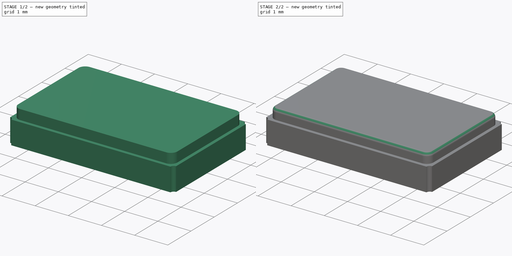
[diagram: build sequence overview — one tinted view per stage of 2, left to right]
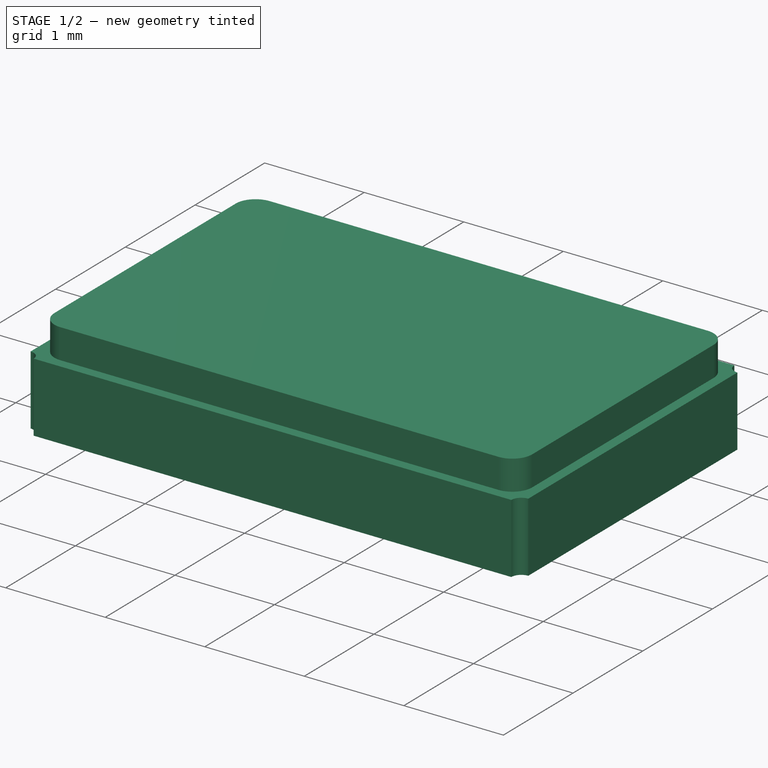
[diagram: stage 1 of 2 — iso view after this stage's code; geometry added in this stage tinted green]
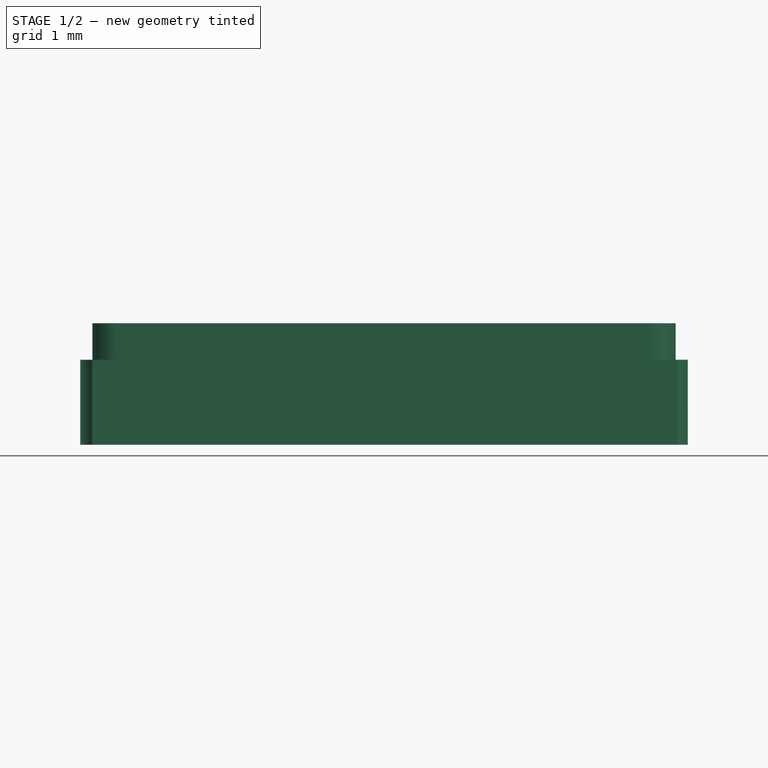
[diagram: stage 1 of 2 — front view after this stage's code; geometry added in this stage tinted green]
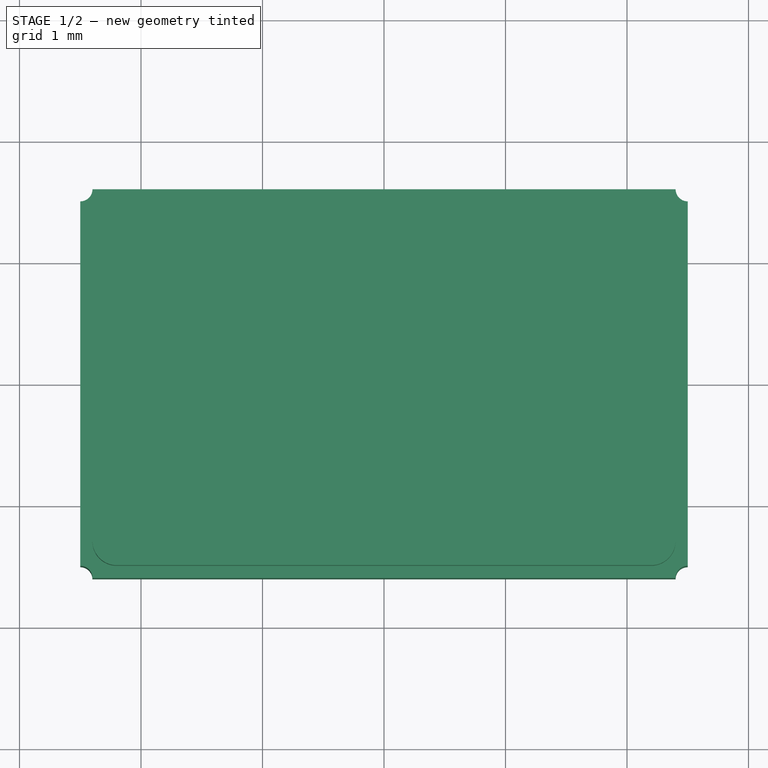
[diagram: stage 1 of 2 — top view after this stage's code; geometry added in this stage tinted green]
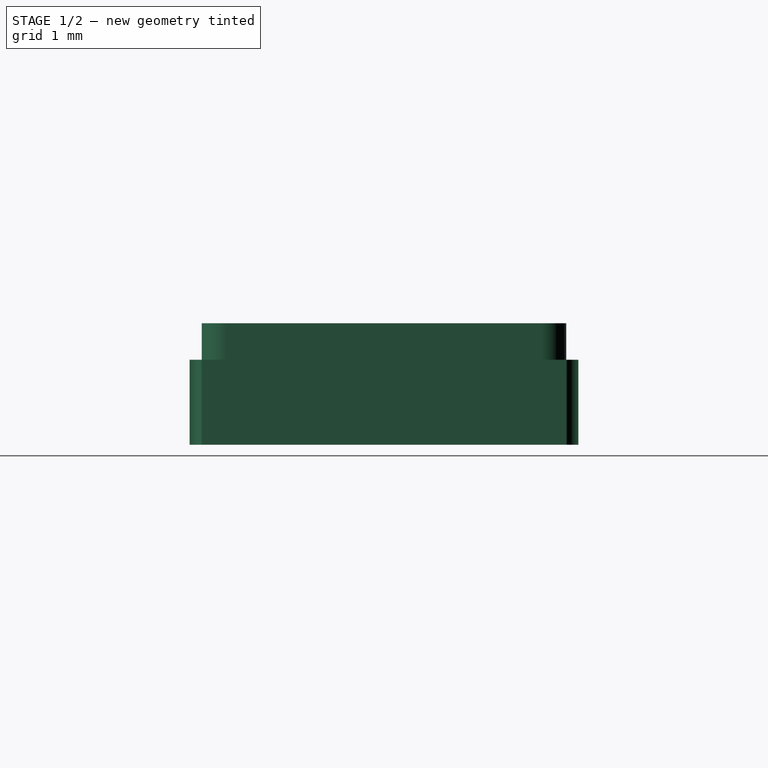
[diagram: stage 1 of 2 — right view after this stage's code; geometry added in this stage tinted green]
FCSTD DOCUMENT  (FreeCAD 0.21R33771 (Git))
Label: EURO_QUARZ_5.0x3.2x1.0
License: All rights reserved
LicenseURL: https://en.wikipedia.org/wiki/All_rights_reserved
objects: Sketcher::SketchObject×2, PartDesign::Pad×2, PartDesign::Fillet×1, PartDesign::Body×1
note: 9 computed .brp shape members not serialized (recipe doc carries the construction recipe); baked Part::Feature solids carry a one-line shape summary decoded from their .brp

FEATURE [Sketcher::SketchObject] Sketch001
  FullyConstrained = false
  MapMode = 5
  Support = -> [XY_Plane]
  sketch-geometry (9):
    g0: LineSegment StartX=-2.5 StartY=1.5 StartZ=0 EndX=-2.5 EndY=-1.5 EndZ=0
    g1: LineSegment StartX=-2.4 StartY=-1.6 StartZ=0 EndX=2.4 EndY=-1.6 EndZ=0
    g2: LineSegment StartX=2.5 StartY=-1.5 StartZ=0 EndX=2.5 EndY=1.5 EndZ=0
    g3: LineSegment StartX=2.4 StartY=1.6 StartZ=0 EndX=-2.3993 EndY=1.6 EndZ=0
    g4: GeomPoint X=0 Y=0 Z=0
    g5: ArcOfCircle CenterX=-2.4993 CenterY=1.6 CenterZ=0 NormalX=0 NormalY=0 NormalZ=1 AngleXU=0 Radius=0.1 StartAngle=4.70535 EndAngle=6.28319
    g6: ArcOfCircle CenterX=2.5 CenterY=1.6 CenterZ=0 NormalX=0 NormalY=0 NormalZ=1 AngleXU=0 Radius=0.1 StartAngle=3.14159 EndAngle=4.71239
    g7: ArcOfCircle CenterX=2.5 CenterY=-1.6 CenterZ=0 NormalX=0 NormalY=0 NormalZ=1 AngleXU=0 Radius=0.1 StartAngle=1.5708 EndAngle=3.14159
    g8: ArcOfCircle CenterX=-2.5 CenterY=-1.6 CenterZ=0 NormalX=0 NormalY=0 NormalZ=1 AngleXU=0 Radius=0.1 StartAngle=-1.8e-15 EndAngle=1.5708
  constraints (23):
    c: Horizontal(g1)
    c: Horizontal(g3)
    c: Vertical(g0)
    c: Vertical(g2)
    c: Coincident(g4,g-1)
    c: DistanceY(g7,g6) = 3.2
    c: PointOnObject(g5,g3)
    c: Radius(g5) = 0.1
    c: Radius(g6) = 0.1
    c: Radius(g7) = 0.1
    c: Radius(g8) = 0.1
    c: Coincident(g3,g5)
    c: Coincident(g0,g5)
    c: Coincident(g3,g6)
    c: Coincident(g2,g6)
    c: Coincident(g0,g8)
    c: Coincident(g1,g8)
    c: Coincident(g1,g7)
    c: Coincident(g2,g7)
    c: DistanceX(g4,g2) = 2.5
    c: DistanceX(g0,g4) = 2.5
    c: DistanceY(g4,g3) = 1.6
    c: DistanceY(g1,g4) = 1.6
FEATURE [PartDesign::Pad] Pad
  Direction = (0,0,1)
  Length = 0.7
  Length2 = 10
  Profile = -> Sketch001
  ReferenceAxis = -> Sketch001 [N_Axis]
  Type = 0
FEATURE [Sketcher::SketchObject] Sketch
  FullyConstrained = true
  MapMode = 5
  Placement = pos=(0,0,0.7) rot=(0,0,1;0rad)
  Support = -> [Pad]
  sketch-geometry (9):
    g0: LineSegment StartX=-2.4 StartY=1.3 StartZ=0 EndX=-2.4 EndY=-1.3 EndZ=0
    g1: LineSegment StartX=-2.2 StartY=-1.5 StartZ=0 EndX=2.2 EndY=-1.5 EndZ=0
    g2: LineSegment StartX=2.4 StartY=-1.3 StartZ=0 EndX=2.4 EndY=1.3 EndZ=0
    g3: LineSegment StartX=2.2 StartY=1.5 StartZ=0 EndX=-2.2 EndY=1.5 EndZ=0
    g4: GeomPoint X=0 Y=0 Z=0
    g5: ArcOfCircle CenterX=-2.2 CenterY=1.3 CenterZ=0 NormalX=0 NormalY=0 NormalZ=1 AngleXU=0 Radius=0.2 StartAngle=1.5708 EndAngle=3.14159
    g6: ArcOfCircle CenterX=2.2 CenterY=1.3 CenterZ=0 NormalX=0 NormalY=0 NormalZ=1 AngleXU=0 Radius=0.2 StartAngle=4e-16 EndAngle=1.5708
    g7: ArcOfCircle CenterX=2.2 CenterY=-1.3 CenterZ=0 NormalX=0 NormalY=0 NormalZ=1 AngleXU=0 Radius=0.2 StartAngle=4.71239 EndAngle=6.28319
    g8: ArcOfCircle CenterX=-2.2 CenterY=-1.3 CenterZ=0 NormalX=0 NormalY=0 NormalZ=1 AngleXU=0 Radius=0.2 StartAngle=3.14159 EndAngle=4.71239
  constraints (21):
    c: Horizontal(g1)
    c: Horizontal(g3)
    c: Vertical(g0)
    c: Vertical(g2)
    c: Coincident(g4,g-1)
    c: Tangent(g0,g5) = -1.5708
    c: Tangent(g3,g5) = -1.5708
    c: Tangent(g2,g6) = -1.5708
    c: Tangent(g3,g6) = -1.5708
    c: Tangent(g1,g7) = -1.5708
    c: Tangent(g2,g7) = -1.5708
    c: Tangent(g0,g8) = -1.5708
    c: Tangent(g1,g8) = -1.5708
    c: Radius(g5) = 0.2
    c: Radius(g6) = 0.2
    c: Radius(g7) = 0.2
    c: Radius(g8) = 0.2
    c: DistanceX(g4,g2) = 2.4
    c: DistanceX(g0,g4) = 2.4
    c: DistanceY(g4,g3) = 1.5
    c: DistanceY(g1,g4) = 1.5
FEATURE [PartDesign::Pad] Pad001
  BaseFeature = -> Pad
  Direction = (0,0,1)
  Length = 0.3
  Length2 = 10
  Profile = -> Sketch
  ReferenceAxis = -> Sketch [N_Axis]
  Type = 0
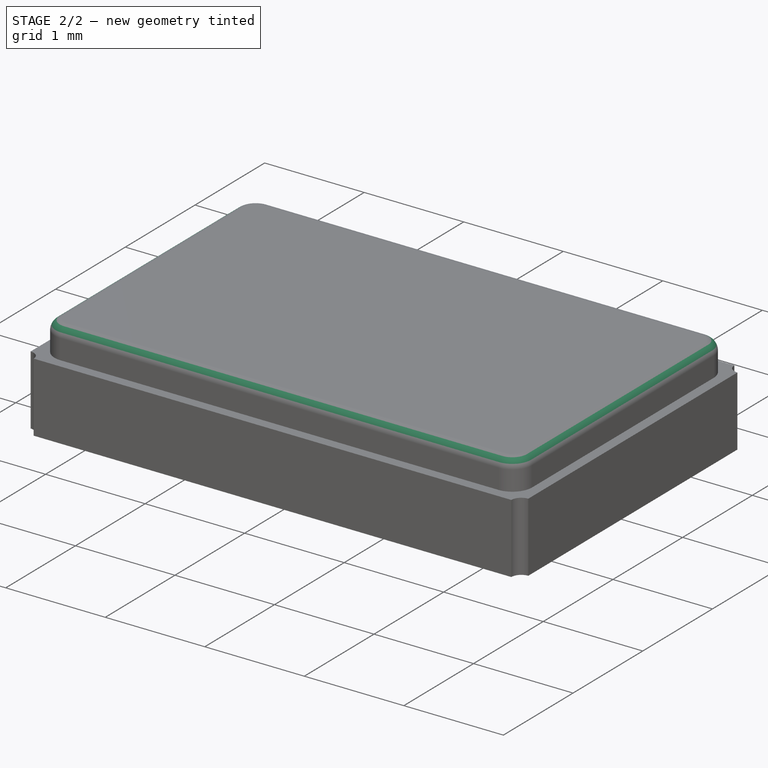
[diagram: stage 2 of 2 — iso view after this stage's code; geometry added in this stage tinted green]
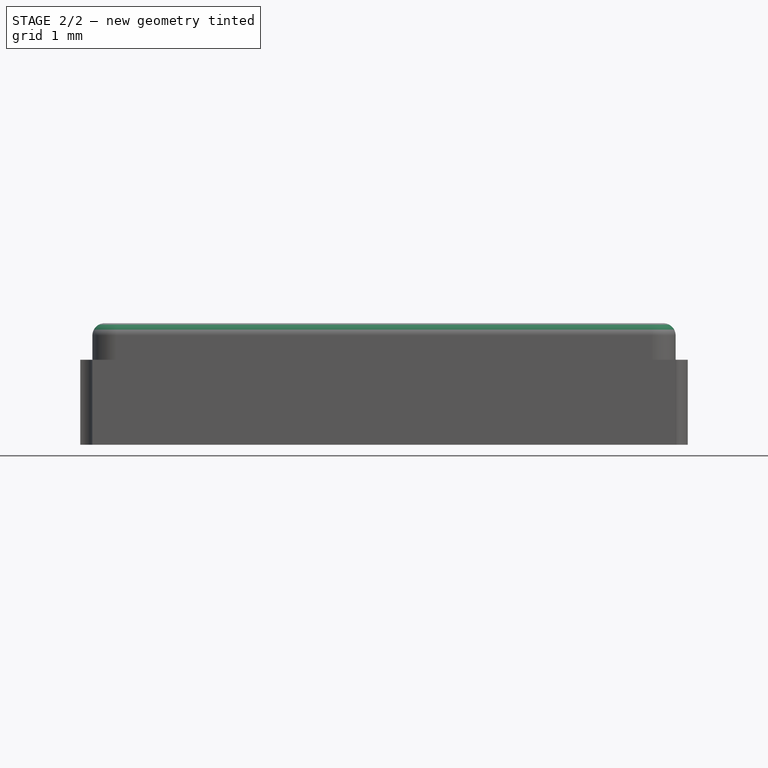
[diagram: stage 2 of 2 — front view after this stage's code; geometry added in this stage tinted green]
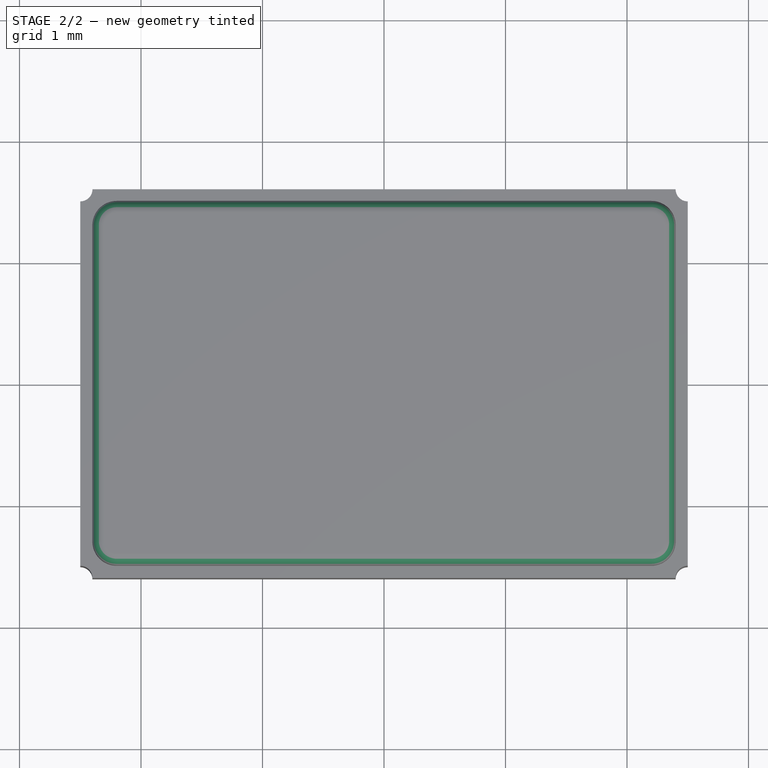
[diagram: stage 2 of 2 — top view after this stage's code; geometry added in this stage tinted green]
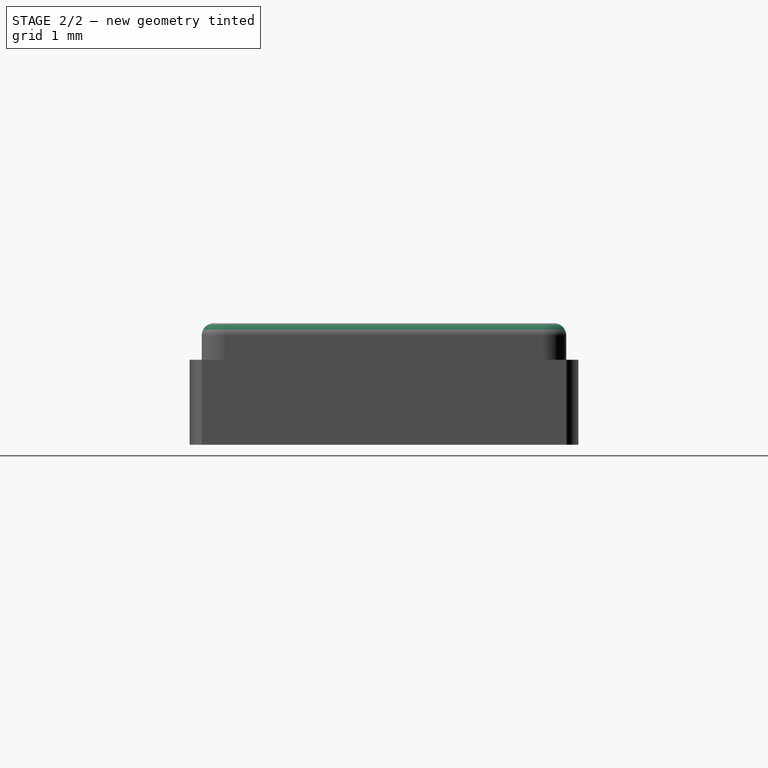
[diagram: stage 2 of 2 — right view after this stage's code; geometry added in this stage tinted green]
FEATURE [PartDesign::Fillet] Fillet
  Base = -> Pad001 [Face19]
  BaseFeature = -> Pad001
  Radius = 0.1
  SupportTransform = false
  UseAllEdges = false
FEATURE [PartDesign::Body] Body  label="Körper"
  Group = -> [Sketch001,Pad,Sketch,Pad001,Fillet]
  Origin = -> Origin
  Tip = -> Fillet
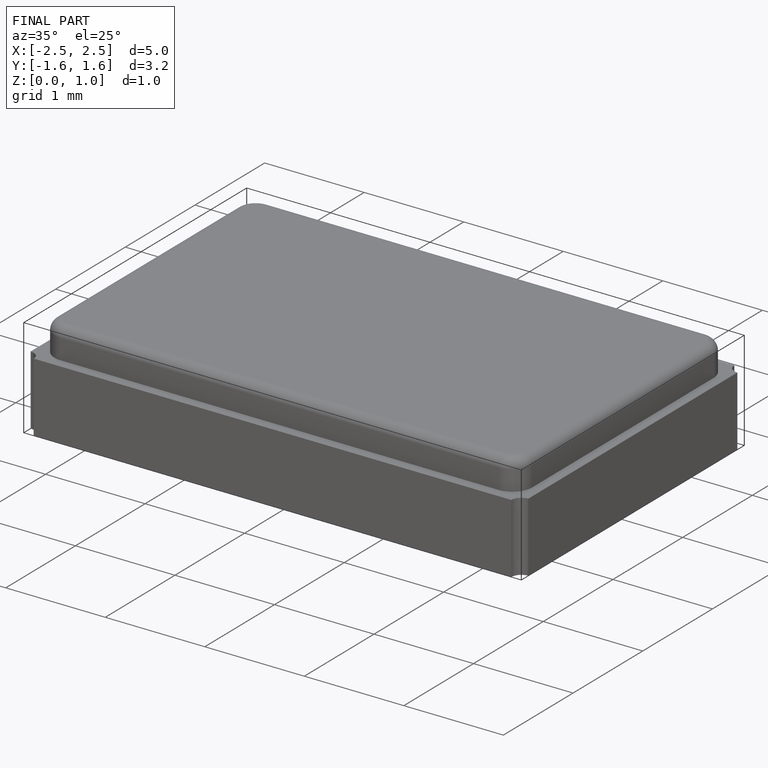
[diagram: finished part — iso view with bounding-box wireframe]
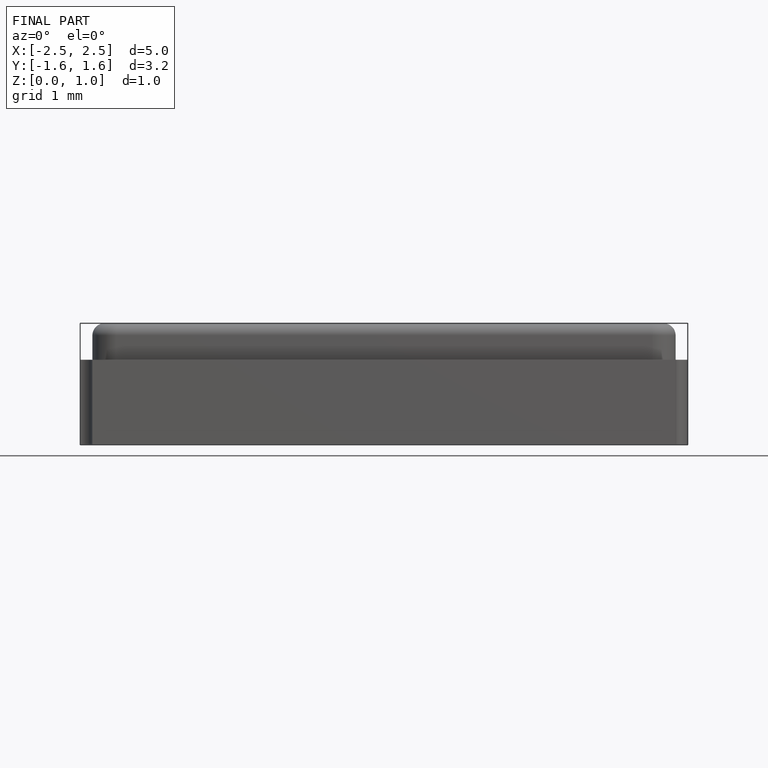
[diagram: finished part — front view with bounding-box wireframe]
